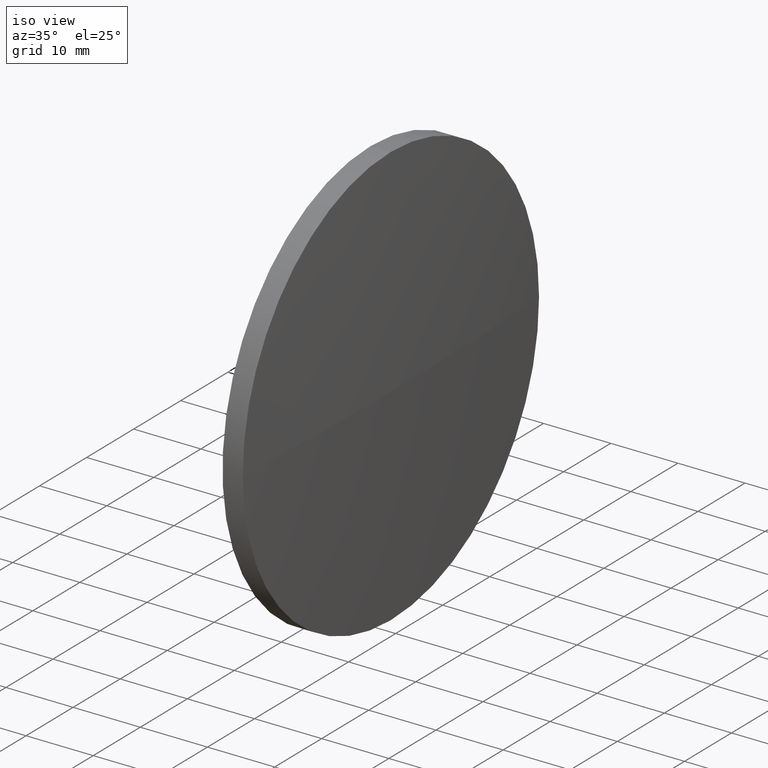
[diagram: clean part render]
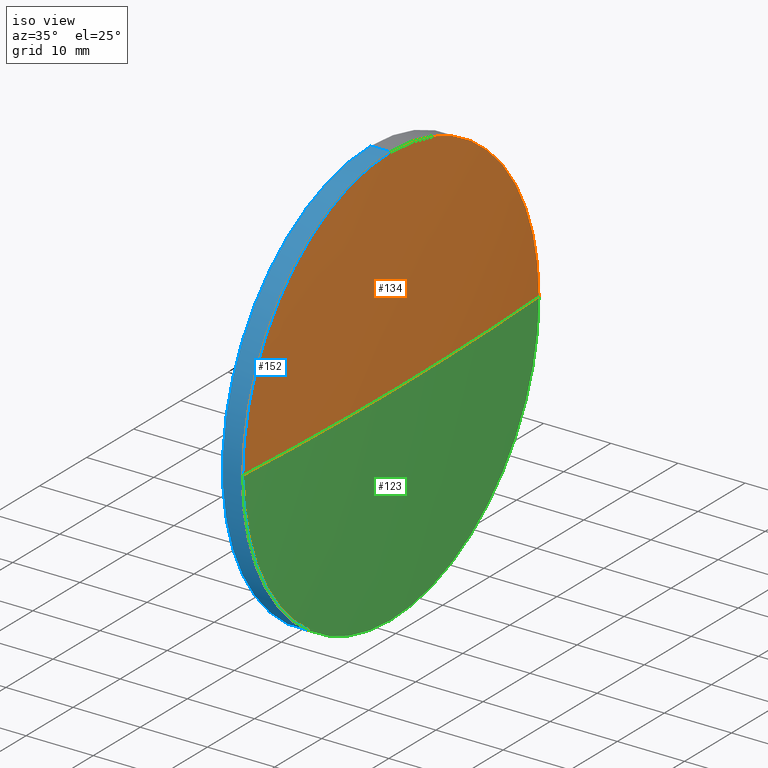
[diagram: same view with three faces highlighted in distinct colors, each labeled with its STEP entity id]
A machine part, iso view with three faces highlighted in distinct colors.
Their STEP definitions:

[orange] entity #134 — the highlighted spherical surface has radius 517.277 mm.
#5 = CARTESIAN_POINT ( 'NONE',  ( 228.9653141997174000, 161.9671098528241900, 0.0000000000000000000 ) ) ;
#6 = FACE_OUTER_BOUND ( 'NONE', #69, .T. ) ;
#7 = CARTESIAN_POINT ( 'NONE',  ( 228.9653141997173700, 130.4671098528244200, 0.0000000000000000000 ) ) ;
#10 = CARTESIAN_POINT ( 'NONE',  ( 228.9653141997174000, 98.96710985282464900, -3.857637417314135900E-015 ) ) ;
#12 = DIRECTION ( 'NONE',  ( -0.0000000000000000000, 0.0000000000000000000, -1.000000000000000000 ) ) ;
#14 = CIRCLE ( 'NONE', #163, 31.50000000000000000 ) ;
#15 = AXIS2_PLACEMENT_3D ( 'NONE', #180, #65, #80 ) ;
#22 = CARTESIAN_POINT ( 'NONE',  ( -287.3515608002779800, 130.4671098528244200, 0.0000000000000000000 ) ) ;
#23 = CARTESIAN_POINT ( 'NONE',  ( -287.3515608002779800, 130.4671098528244200, 0.0000000000000000000 ) ) ;
#26 = VERTEX_POINT ( 'NONE', #32 ) ;
#27 = AXIS2_PLACEMENT_3D ( 'NONE', #23, #117, #52 ) ;
#29 = ORIENTED_EDGE ( 'NONE', *, *, #164, .F. ) ;
#32 = CARTESIAN_POINT ( 'NONE',  ( 228.9653141997173700, 130.4671098528244200, 31.50000000000000000 ) ) ;
#33 = CIRCLE ( 'NONE', #27, 517.2768749999953600 ) ;
#35 = CARTESIAN_POINT ( 'NONE',  ( 229.9253141997173500, 130.4671098528244500, 0.0000000000000000000 ) ) ;
#36 = ORIENTED_EDGE ( 'NONE', *, *, #75, .F. ) ;
#52 = DIRECTION ( 'NONE',  ( 1.000000000000000000, 0.0000000000000000000, 0.0000000000000000000 ) ) ;
#65 = DIRECTION ( 'NONE',  ( -1.000000000000000000, -0.0000000000000000000, -0.0000000000000000000 ) ) ;
#69 = EDGE_LOOP ( 'NONE', ( #29, #110, #36, #130 ) ) ;
#75 = EDGE_CURVE ( 'NONE', #26, #107, #14, .T. ) ;
#79 = DIRECTION ( 'NONE',  ( 0.0000000000000000000, 1.000000000000000000, 1.224646799147353200E-016 ) ) ;
#80 = DIRECTION ( 'NONE',  ( 0.0000000000000000000, 0.0000000000000000000, 1.000000000000000000 ) ) ;
#85 = DIRECTION ( 'NONE',  ( 0.0000000000000000000, 0.0000000000000000000, 1.000000000000000000 ) ) ;
#88 = VERTEX_POINT ( 'NONE', #35 ) ;
#92 = DIRECTION ( 'NONE',  ( 0.0000000000000000000, 1.224646799147353200E-016, -1.000000000000000000 ) ) ;
#94 = AXIS2_PLACEMENT_3D ( 'NONE', #160, #92, #79 ) ;
#105 = DIRECTION ( 'NONE',  ( 0.0000000000000000000, 1.000000000000000000, 0.0000000000000000000 ) ) ;
#107 = VERTEX_POINT ( 'NONE', #5 ) ;
#110 = ORIENTED_EDGE ( 'NONE', *, *, #120, .T. ) ;
#117 = DIRECTION ( 'NONE',  ( -0.0000000000000000000, 0.0000000000000000000, 1.000000000000000000 ) ) ;
#120 = EDGE_CURVE ( 'NONE', #88, #107, #33, .T. ) ;
#122 = AXIS2_PLACEMENT_3D ( 'NONE', #22, #12, #105 ) ;
#130 = ORIENTED_EDGE ( 'NONE', *, *, #172, .F. ) ;
#134 = ADVANCED_FACE ( 'NONE', ( #6 ), #173, .T. ) ;
#145 = CIRCLE ( 'NONE', #94, 517.2768749999953600 ) ;
#160 = CARTESIAN_POINT ( 'NONE',  ( -287.3515608002779800, 130.4671098528244200, 0.0000000000000000000 ) ) ;
#163 = AXIS2_PLACEMENT_3D ( 'NONE', #7, #168, #85 ) ;
#164 = EDGE_CURVE ( 'NONE', #88, #166, #145, .T. ) ;
#166 = VERTEX_POINT ( 'NONE', #10 ) ;
#168 = DIRECTION ( 'NONE',  ( -1.000000000000000000, -0.0000000000000000000, -0.0000000000000000000 ) ) ;
#172 = EDGE_CURVE ( 'NONE', #166, #26, #178, .T. ) ;
#173 = SPHERICAL_SURFACE ( 'NONE', #122, 517.2768749999953600 ) ;
#178 = CIRCLE ( 'NONE', #15, 31.50000000000000000 ) ;
#180 = CARTESIAN_POINT ( 'NONE',  ( 228.9653141997173700, 130.4671098528244200, 0.0000000000000000000 ) ) ;

[blue] entity #152 — the highlighted cylindrical surface (partial cylindrical patch) has radius 31.5 mm, axis along (-1, -0, -0).
#1 = VECTOR ( 'NONE', #144, 1000.000000000000000 ) ;
#2 = CARTESIAN_POINT ( 'NONE',  ( 225.9653141997173400, 130.4671098528244200, 0.0000000000000000000 ) ) ;
#3 = CIRCLE ( 'NONE', #151, 31.50000000000000000 ) ;
#8 = CARTESIAN_POINT ( 'NONE',  ( 225.9653141997173400, 130.4671098528244200, -31.50000000000000000 ) ) ;
#10 = CARTESIAN_POINT ( 'NONE',  ( 228.9653141997174000, 98.96710985282464900, -3.857637417314135900E-015 ) ) ;
#13 = CARTESIAN_POINT ( 'NONE',  ( 228.9653141997173700, 130.4671098528244200, -31.50000000000000000 ) ) ;
#15 = AXIS2_PLACEMENT_3D ( 'NONE', #180, #65, #80 ) ;
#24 = EDGE_CURVE ( 'NONE', #82, #166, #61, .T. ) ;
#26 = VERTEX_POINT ( 'NONE', #32 ) ;
#28 = CYLINDRICAL_SURFACE ( 'NONE', #57, 31.50000000000000000 ) ;
#30 = ORIENTED_EDGE ( 'NONE', *, *, #24, .T. ) ;
#32 = CARTESIAN_POINT ( 'NONE',  ( 228.9653141997173700, 130.4671098528244200, 31.50000000000000000 ) ) ;
#44 = DIRECTION ( 'NONE',  ( 0.0000000000000000000, 0.0000000000000000000, 1.000000000000000000 ) ) ;
#51 = CARTESIAN_POINT ( 'NONE',  ( 217.9945825323866300, 130.4671098528244200, -31.50000000000000000 ) ) ;
#57 = AXIS2_PLACEMENT_3D ( 'NONE', #149, #147, #106 ) ;
#61 = CIRCLE ( 'NONE', #137, 31.50000000000000000 ) ;
#64 = FACE_OUTER_BOUND ( 'NONE', #102, .T. ) ;
#65 = DIRECTION ( 'NONE',  ( -1.000000000000000000, -0.0000000000000000000, -0.0000000000000000000 ) ) ;
#68 = EDGE_CURVE ( 'NONE', #91, #142, #3, .T. ) ;
#71 = DIRECTION ( 'NONE',  ( -1.000000000000000000, -0.0000000000000000000, -0.0000000000000000000 ) ) ;
#80 = DIRECTION ( 'NONE',  ( 0.0000000000000000000, 0.0000000000000000000, 1.000000000000000000 ) ) ;
#82 = VERTEX_POINT ( 'NONE', #13 ) ;
#90 = CARTESIAN_POINT ( 'NONE',  ( 225.9653141997173400, 130.4671098528244200, 31.50000000000000000 ) ) ;
#91 = VERTEX_POINT ( 'NONE', #8 ) ;
#95 = ORIENTED_EDGE ( 'NONE', *, *, #182, .T. ) ;
#102 = EDGE_LOOP ( 'NONE', ( #165, #30, #176, #95, #133 ) ) ;
#104 = LINE ( 'NONE', #51, #1 ) ;
#106 = DIRECTION ( 'NONE',  ( 0.0000000000000000000, 0.0000000000000000000, 1.000000000000000000 ) ) ;
#109 = VECTOR ( 'NONE', #162, 1000.000000000000000 ) ;
#126 = CARTESIAN_POINT ( 'NONE',  ( 228.9653141997173700, 130.4671098528244200, 0.0000000000000000000 ) ) ;
#128 = DIRECTION ( 'NONE',  ( 0.0000000000000000000, 0.0000000000000000000, 1.000000000000000000 ) ) ;
#133 = ORIENTED_EDGE ( 'NONE', *, *, #68, .F. ) ;
#135 = LINE ( 'NONE', #146, #109 ) ;
#137 = AXIS2_PLACEMENT_3D ( 'NONE', #126, #170, #128 ) ;
#141 = EDGE_CURVE ( 'NONE', #82, #91, #104, .T. ) ;
#142 = VERTEX_POINT ( 'NONE', #90 ) ;
#144 = DIRECTION ( 'NONE',  ( -1.000000000000000000, -0.0000000000000000000, -0.0000000000000000000 ) ) ;
#146 = CARTESIAN_POINT ( 'NONE',  ( 217.9945825323866300, 130.4671098528244200, 31.50000000000000000 ) ) ;
#147 = DIRECTION ( 'NONE',  ( -1.000000000000000000, -0.0000000000000000000, -0.0000000000000000000 ) ) ;
#149 = CARTESIAN_POINT ( 'NONE',  ( 217.9945825323866300, 130.4671098528244200, 0.0000000000000000000 ) ) ;
#151 = AXIS2_PLACEMENT_3D ( 'NONE', #2, #71, #44 ) ;
#152 = ADVANCED_FACE ( 'NONE', ( #64 ), #28, .T. ) ;
#162 = DIRECTION ( 'NONE',  ( -1.000000000000000000, -0.0000000000000000000, -0.0000000000000000000 ) ) ;
#165 = ORIENTED_EDGE ( 'NONE', *, *, #141, .F. ) ;
#166 = VERTEX_POINT ( 'NONE', #10 ) ;
#170 = DIRECTION ( 'NONE',  ( -1.000000000000000000, -0.0000000000000000000, -0.0000000000000000000 ) ) ;
#172 = EDGE_CURVE ( 'NONE', #166, #26, #178, .T. ) ;
#176 = ORIENTED_EDGE ( 'NONE', *, *, #172, .T. ) ;
#178 = CIRCLE ( 'NONE', #15, 31.50000000000000000 ) ;
#180 = CARTESIAN_POINT ( 'NONE',  ( 228.9653141997173700, 130.4671098528244200, 0.0000000000000000000 ) ) ;
#182 = EDGE_CURVE ( 'NONE', #26, #142, #135, .T. ) ;

[green] entity #123 — the highlighted spherical surface has radius 517.277 mm.
#5 = CARTESIAN_POINT ( 'NONE',  ( 228.9653141997174000, 161.9671098528241900, 0.0000000000000000000 ) ) ;
#10 = CARTESIAN_POINT ( 'NONE',  ( 228.9653141997174000, 98.96710985282464900, -3.857637417314135900E-015 ) ) ;
#13 = CARTESIAN_POINT ( 'NONE',  ( 228.9653141997173700, 130.4671098528244200, -31.50000000000000000 ) ) ;
#23 = CARTESIAN_POINT ( 'NONE',  ( -287.3515608002779800, 130.4671098528244200, 0.0000000000000000000 ) ) ;
#24 = EDGE_CURVE ( 'NONE', #82, #166, #61, .T. ) ;
#27 = AXIS2_PLACEMENT_3D ( 'NONE', #23, #117, #52 ) ;
#31 = DIRECTION ( 'NONE',  ( 0.0000000000000000000, 0.0000000000000000000, 1.000000000000000000 ) ) ;
#33 = CIRCLE ( 'NONE', #27, 517.2768749999953600 ) ;
#35 = CARTESIAN_POINT ( 'NONE',  ( 229.9253141997173500, 130.4671098528244500, 0.0000000000000000000 ) ) ;
#38 = SPHERICAL_SURFACE ( 'NONE', #42, 517.2768749999953600 ) ;
#39 = CARTESIAN_POINT ( 'NONE',  ( -287.3515608002779800, 130.4671098528244200, 0.0000000000000000000 ) ) ;
#41 = CIRCLE ( 'NONE', #112, 31.50000000000000000 ) ;
#42 = AXIS2_PLACEMENT_3D ( 'NONE', #39, #131, #118 ) ;
#52 = DIRECTION ( 'NONE',  ( 1.000000000000000000, 0.0000000000000000000, 0.0000000000000000000 ) ) ;
#55 = EDGE_CURVE ( 'NONE', #107, #82, #41, .T. ) ;
#61 = CIRCLE ( 'NONE', #137, 31.50000000000000000 ) ;
#79 = DIRECTION ( 'NONE',  ( 0.0000000000000000000, 1.000000000000000000, 1.224646799147353200E-016 ) ) ;
#82 = VERTEX_POINT ( 'NONE', #13 ) ;
#88 = VERTEX_POINT ( 'NONE', #35 ) ;
#92 = DIRECTION ( 'NONE',  ( 0.0000000000000000000, 1.224646799147353200E-016, -1.000000000000000000 ) ) ;
#93 = ORIENTED_EDGE ( 'NONE', *, *, #55, .F. ) ;
#94 = AXIS2_PLACEMENT_3D ( 'NONE', #160, #92, #79 ) ;
#98 = DIRECTION ( 'NONE',  ( -1.000000000000000000, -0.0000000000000000000, -0.0000000000000000000 ) ) ;
#99 = CARTESIAN_POINT ( 'NONE',  ( 228.9653141997173700, 130.4671098528244200, 0.0000000000000000000 ) ) ;
#100 = FACE_OUTER_BOUND ( 'NONE', #175, .T. ) ;
#107 = VERTEX_POINT ( 'NONE', #5 ) ;
#112 = AXIS2_PLACEMENT_3D ( 'NONE', #99, #98, #31 ) ;
#116 = ORIENTED_EDGE ( 'NONE', *, *, #120, .F. ) ;
#117 = DIRECTION ( 'NONE',  ( -0.0000000000000000000, 0.0000000000000000000, 1.000000000000000000 ) ) ;
#118 = DIRECTION ( 'NONE',  ( 0.0000000000000000000, 1.000000000000000000, 0.0000000000000000000 ) ) ;
#120 = EDGE_CURVE ( 'NONE', #88, #107, #33, .T. ) ;
#123 = ADVANCED_FACE ( 'NONE', ( #100 ), #38, .T. ) ;
#126 = CARTESIAN_POINT ( 'NONE',  ( 228.9653141997173700, 130.4671098528244200, 0.0000000000000000000 ) ) ;
#128 = DIRECTION ( 'NONE',  ( 0.0000000000000000000, 0.0000000000000000000, 1.000000000000000000 ) ) ;
#131 = DIRECTION ( 'NONE',  ( -0.0000000000000000000, 0.0000000000000000000, -1.000000000000000000 ) ) ;
#136 = ORIENTED_EDGE ( 'NONE', *, *, #164, .T. ) ;
#137 = AXIS2_PLACEMENT_3D ( 'NONE', #126, #170, #128 ) ;
#145 = CIRCLE ( 'NONE', #94, 517.2768749999953600 ) ;
#148 = ORIENTED_EDGE ( 'NONE', *, *, #24, .F. ) ;
#160 = CARTESIAN_POINT ( 'NONE',  ( -287.3515608002779800, 130.4671098528244200, 0.0000000000000000000 ) ) ;
#164 = EDGE_CURVE ( 'NONE', #88, #166, #145, .T. ) ;
#166 = VERTEX_POINT ( 'NONE', #10 ) ;
#170 = DIRECTION ( 'NONE',  ( -1.000000000000000000, -0.0000000000000000000, -0.0000000000000000000 ) ) ;
#175 = EDGE_LOOP ( 'NONE', ( #116, #136, #148, #93 ) ) ;